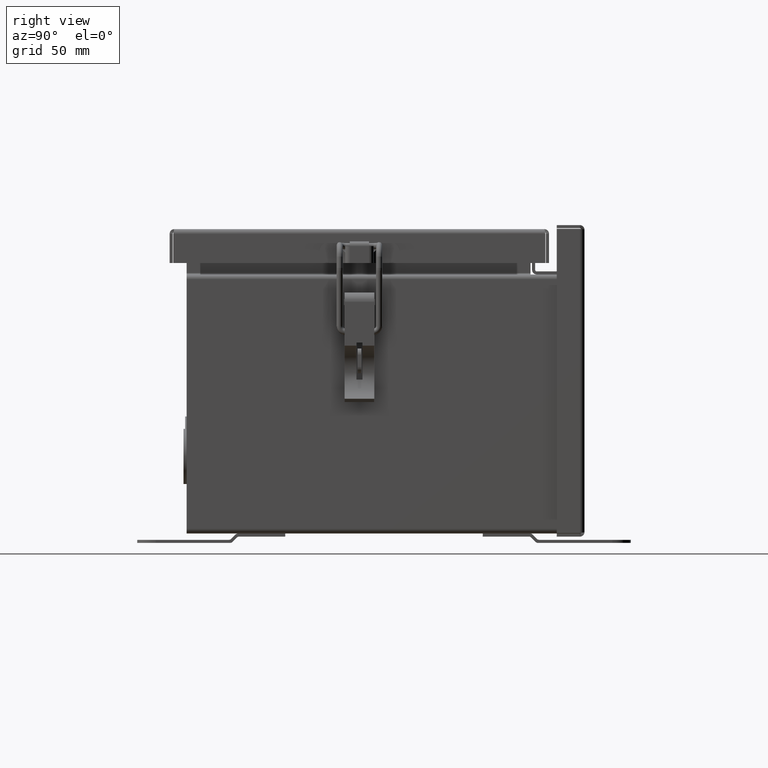
[diagram: clean part render]
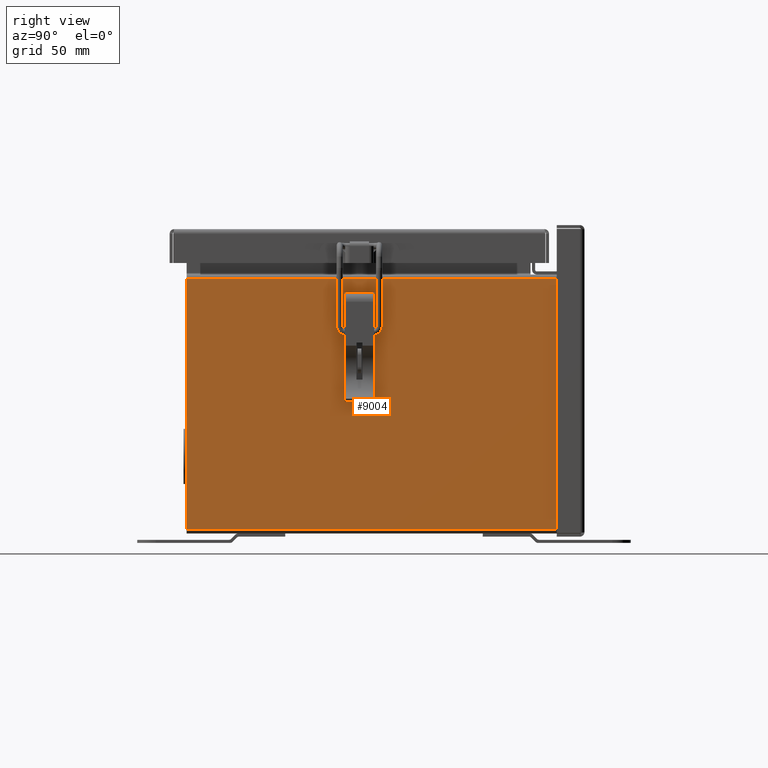
[diagram: same view with one face highlighted and labeled with its STEP entity id]
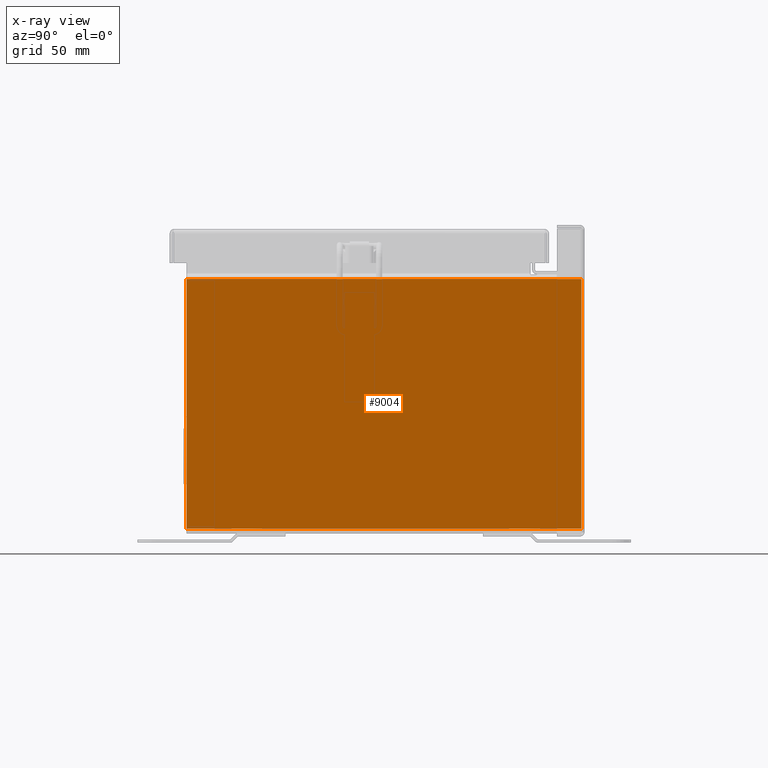
[diagram: x-ray of the same camera — body ghosted, the highlighted face saturated]
A machine part, right view. The second image highlights one B-rep face of the part: STEP entity #9004.
The next image is the same camera in x-ray: the body ghosted, the highlighted face saturated — about 0% of this face is hidden behind the body in this view.
In plain terms, the highlighted planar face has unit normal (-1, 0, 0).
Its self-contained STEP definition (entity closure, byte-faithful):
#353=PLANE($,#9586);
#720=FACE_OUTER_BOUND($,#1229,.T.);
#1229=EDGE_LOOP($,(#6112,#6113,#6114,#6115));
#2113=LINE($,#12984,#3039);
#2137=LINE($,#13045,#3063);
#2140=LINE($,#13052,#3066);
#2142=LINE($,#13055,#3068);
#3039=VECTOR($,#10456,8.);
#3063=VECTOR($,#10526,5.0625);
#3066=VECTOR($,#10533,5.0625);
#3068=VECTOR($,#10537,8.);
#3946=VERTEX_POINT($,#12981);
#3947=VERTEX_POINT($,#12983);
#3961=VERTEX_POINT($,#13043);
#3963=VERTEX_POINT($,#13051);
#4743=EDGE_CURVE($,#3947,#3946,#2113,.T.);
#4774=EDGE_CURVE($,#3961,#3946,#2137,.T.);
#4777=EDGE_CURVE($,#3947,#3963,#2140,.T.);
#4779=EDGE_CURVE($,#3961,#3963,#2142,.T.);
#6112=ORIENTED_EDGE($,*,*,#4743,.T.);
#6113=ORIENTED_EDGE($,*,*,#4774,.F.);
#6114=ORIENTED_EDGE($,*,*,#4779,.T.);
#6115=ORIENTED_EDGE($,*,*,#4777,.F.);
#9004=ADVANCED_FACE($,(#720),#353,.F.);
#9586=AXIS2_PLACEMENT_3D($,#13069,#10553,#10554);
#10456=DIRECTION($,(-2.91864101887208E-019,-1.,0.));
#10526=DIRECTION($,(5.39030285815812E-015,0.,1.));
#10533=DIRECTION($,(-5.32907051820075E-015,0.,-1.));
#10537=DIRECTION($,(2.91864101887208E-019,1.,-1.57323590259637E-033));
#10553=DIRECTION('center_axis',(-1.,2.91864101887208E-019,5.37980581126267E-015));
#10554=DIRECTION('ref_axis',(4.51194637207664E-015,0.,1.));
#12981=CARTESIAN_POINT('',(4.00000000000003,-4.,5.15625));
#12983=CARTESIAN_POINT('',(4.00000000000003,4.,5.15625));
#12984=CARTESIAN_POINT($,(4.00000000000002,2.,5.15625));
#13043=CARTESIAN_POINT('',(4.,-4.,0.0937499999999993));
#13045=CARTESIAN_POINT($,(4.,-4.,0.0937499999999993));
#13051=CARTESIAN_POINT('',(4.,4.,0.0937499999999993));
#13052=CARTESIAN_POINT($,(4.,4.,-0.0908185683984017));
#13055=CARTESIAN_POINT($,(4.,5.68219275060384E-016,0.0937499999999987));
#13069=CARTESIAN_POINT('Origin',(4.00000000000001,4.37095678986282E-016,
2.6257328579004));